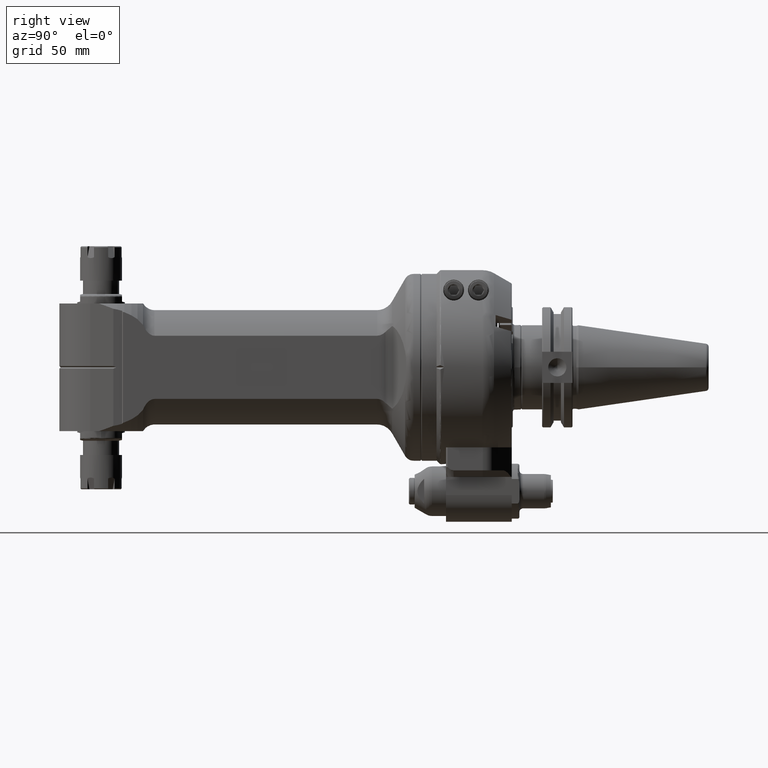
[diagram: clean part render]
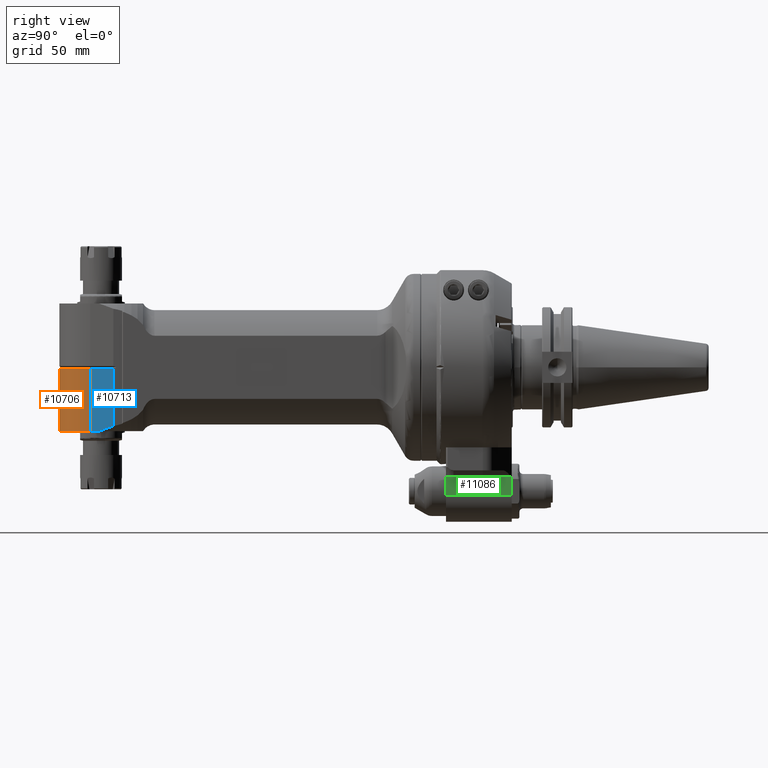
[diagram: same view with three faces highlighted in distinct colors, each labeled with its STEP entity id]
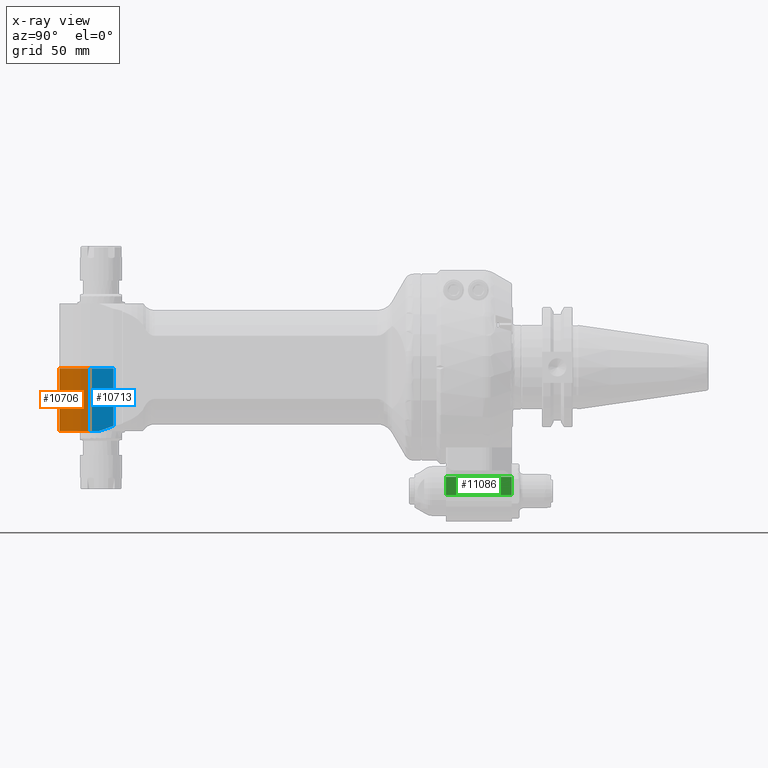
[diagram: x-ray of the same camera — body ghosted, the three highlighted faces saturated]
A machine part, right view with three faces highlighted in distinct colors.
The next image is the same camera in x-ray (body ghosted, the three faces saturated) — at least one of them is partly hidden behind the body in this view.
Their STEP definitions:

[orange] entity #10706 — the highlighted cylindrical surface (partial cylindrical patch) has radius 22 mm, axis along (-0, 0, -1).
#928=FACE_OUTER_BOUND('',#1599,.T.);
#1599=EDGE_LOOP('',(#7497,#7498,#7499,#7500));
#2386=LINE('',#16754,#3134);
#2387=LINE('',#16759,#3135);
#3134=VECTOR('',#13010,32.83431457505);
#3135=VECTOR('',#13015,32.83431457505);
#3892=CIRCLE('',#11503,22.);
#3893=CIRCLE('',#11504,22.);
#4524=VERTEX_POINT('',#16486);
#4578=VERTEX_POINT('',#16752);
#4579=VERTEX_POINT('',#16756);
#4580=VERTEX_POINT('',#16758);
#5708=EDGE_CURVE('',#4524,#4578,#2386,.T.);
#5709=EDGE_CURVE('',#4579,#4578,#3892,.T.);
#5710=EDGE_CURVE('',#4579,#4580,#2387,.T.);
#5711=EDGE_CURVE('',#4524,#4580,#3893,.T.);
#7497=ORIENTED_EDGE('',*,*,#5708,.T.);
#7498=ORIENTED_EDGE('',*,*,#5709,.F.);
#7499=ORIENTED_EDGE('',*,*,#5710,.T.);
#7500=ORIENTED_EDGE('',*,*,#5711,.F.);
#10497=CYLINDRICAL_SURFACE('',#11502,22.);
#10706=ADVANCED_FACE('',(#928),#10497,.T.);
#11502=AXIS2_PLACEMENT_3D('',#16755,#13011,#13012);
#11503=AXIS2_PLACEMENT_3D('',#16757,#13013,#13014);
#11504=AXIS2_PLACEMENT_3D('',#16760,#13016,#13017);
#13010=DIRECTION('',(0.,1.,0.));
#13011=DIRECTION('center_axis',(0.,1.,0.));
#13012=DIRECTION('ref_axis',(1.,0.,-1.22464679914735E-16));
#13013=DIRECTION('center_axis',(0.,1.,0.));
#13014=DIRECTION('ref_axis',(1.,0.,0.));
#13015=DIRECTION('',(0.,-1.,0.));
#13016=DIRECTION('center_axis',(0.,-1.,0.));
#13017=DIRECTION('ref_axis',(1.,0.,0.));
#16486=CARTESIAN_POINT('',(185.6940189923,0.6656854249493,-21.25036817836));
#16752=CARTESIAN_POINT('',(185.6940189923,33.5,-21.25036817836));
#16754=CARTESIAN_POINT('',(185.6940189923,0.6656854249493,-21.25036817836));
#16755=CARTESIAN_POINT('Origin',(180.,-71.53832403312,0.));
#16756=CARTESIAN_POINT('',(185.6940189923,33.5,21.25036817836));
#16757=CARTESIAN_POINT('Origin',(180.,33.5,0.));
#16758=CARTESIAN_POINT('',(185.6940189923,0.6656854249493,21.25036817836));
#16759=CARTESIAN_POINT('',(185.6940189923,33.5,21.25036817836));
#16760=CARTESIAN_POINT('Origin',(180.,0.6656854249493,0.));

[blue] entity #10713 — the highlighted planar face has unit normal (-0.9659, 0.2588, 0).
#432=(
BOUNDED_CURVE()
B_SPLINE_CURVE(2,(#16777,#16778,#16779),.UNSPECIFIED.,.F.,.F.)
B_SPLINE_CURVE_WITH_KNOTS((3,3),(0.608380908920315,0.668690733625114),
 .UNSPECIFIED.)
CURVE()
GEOMETRIC_REPRESENTATION_ITEM()
RATIONAL_B_SPLINE_CURVE((1.05761844635319,1.05761844635323,1.05705222463782))
REPRESENTATION_ITEM('')
);
#582=PLANE('',#11515);
#935=FACE_OUTER_BOUND('',#1606,.T.);
#1606=EDGE_LOOP('',(#7525,#7526,#7527,#7528,#7529,#7530));
#2303=ELLIPSE('',#11516,277.889209732586,61.2357652891682);
#2369=LINE('',#16557,#3117);
#2387=LINE('',#16759,#3135);
#2392=LINE('',#16782,#3140);
#2393=LINE('',#16784,#3141);
#3117=VECTOR('',#12879,10.);
#3135=VECTOR('',#13015,32.83431457505);
#3140=VECTOR('',#13044,11.9999999999998);
#3141=VECTOR('',#13045,10.);
#4537=VERTEX_POINT('',#16552);
#4538=VERTEX_POINT('',#16556);
#4579=VERTEX_POINT('',#16756);
#4580=VERTEX_POINT('',#16758);
#4583=VERTEX_POINT('',#16776);
#4584=VERTEX_POINT('',#16783);
#5644=EDGE_CURVE('',#4538,#4537,#2369,.T.);
#5710=EDGE_CURVE('',#4579,#4580,#2387,.T.);
#5719=EDGE_CURVE('',#4583,#4537,#432,.T.);
#5721=EDGE_CURVE('',#4583,#4580,#2392,.T.);
#5722=EDGE_CURVE('',#4584,#4579,#2393,.T.);
#5723=EDGE_CURVE('',#4584,#4538,#2303,.T.);
#7525=ORIENTED_EDGE('',*,*,#5644,.T.);
#7526=ORIENTED_EDGE('',*,*,#5719,.F.);
#7527=ORIENTED_EDGE('',*,*,#5721,.T.);
#7528=ORIENTED_EDGE('',*,*,#5710,.F.);
#7529=ORIENTED_EDGE('',*,*,#5722,.F.);
#7530=ORIENTED_EDGE('',*,*,#5723,.T.);
#10713=ADVANCED_FACE('',(#935),#582,.F.);
#11515=AXIS2_PLACEMENT_3D('',#16781,#13042,#13043);
#11516=AXIS2_PLACEMENT_3D('',#16785,#13046,#13047);
#12879=DIRECTION('',(0.,-1.,0.));
#13015=DIRECTION('',(0.,-1.,0.));
#13042=DIRECTION('center_axis',(-0.258819045102493,0.,-0.965925826289076));
#13043=DIRECTION('ref_axis',(-0.965925826289076,0.,0.258819045102493));
#13044=DIRECTION('',(0.965925824665113,-1.25489491020702E-8,-0.258819051163203));
#13045=DIRECTION('',(0.965925826289076,0.,-0.258819045102493));
#13046=DIRECTION('center_axis',(0.258819045102493,0.,0.965925826289076));
#13047=DIRECTION('ref_axis',(-0.965925826289076,9.58848046552246E-17,0.258819045102493));
#16552=CARTESIAN_POINT('',(173.566227923503,0.652829558118699,24.5000000005895));
#16556=CARTESIAN_POINT('',(173.566227928,30.71080615823,24.5));
#16557=CARTESIAN_POINT('',(173.566227927985,-16.7500000000001,24.5));
#16756=CARTESIAN_POINT('',(185.6940189923,33.5,21.25036817836));
#16758=CARTESIAN_POINT('',(185.6940189923,0.6656854249493,21.25036817836));
#16759=CARTESIAN_POINT('',(185.6940189923,33.5,21.25036817836));
#16776=CARTESIAN_POINT('',(174.102909084954,0.665685506700943,24.3561967500683));
#16777=CARTESIAN_POINT('Ctrl Pts',(174.102909076804,0.665685424951387,24.3561967195807));
#16778=CARTESIAN_POINT('Ctrl Pts',(173.834712162842,0.665685424952216,24.4280598660895));
#16779=CARTESIAN_POINT('Ctrl Pts',(173.566227923593,0.652829559505805,24.5000000011767));
#16781=CARTESIAN_POINT('Origin',(171.7002025242,-33.5,25.));
#16782=CARTESIAN_POINT('',(174.1029090963,0.6656855755367,24.35619679232));
#16783=CARTESIAN_POINT('',(181.097598665241,33.5000040656455,22.4819815240738));
#16784=CARTESIAN_POINT('',(168.646875066792,33.5,25.8181366264403));
#16785=CARTESIAN_POINT('Origin',(405.789439788772,0.,-37.7240220818525));

[green] entity #11086 — the highlighted planar face has unit normal (-1, 0, 0).
#343=B_SPLINE_CURVE_WITH_KNOTS('',3,(#21147,#21148,#21149,#21150,#21151,
#21152),.UNSPECIFIED.,.F.,.F.,(4,1,1,4),(0.,0.3333333333333,0.6666666666667,
1.),.UNSPECIFIED.);
#450=(
BOUNDED_CURVE()
B_SPLINE_CURVE(2,(#21144,#21145,#21146),.UNSPECIFIED.,.F.,.F.)
B_SPLINE_CURVE_WITH_KNOTS((3,3),(-2.58287776726093,-2.57434975898472),
 .UNSPECIFIED.)
CURVE()
GEOMETRIC_REPRESENTATION_ITEM()
RATIONAL_B_SPLINE_CURVE((1.44254286468392,1.44297118444748,1.44339185140923))
REPRESENTATION_ITEM('')
);
#763=PLANE('',#12281);
#1308=FACE_OUTER_BOUND('',#2030,.T.);
#2030=EDGE_LOOP('',(#9418,#9419,#9420,#9421,#9422,#9423,#9424));
#2615=LINE('',#18197,#3363);
#2660=LINE('',#18578,#3408);
#2663=LINE('',#18584,#3411);
#2814=LINE('',#20990,#3562);
#2830=LINE('',#21142,#3578);
#3363=VECTOR('',#14061,0.374015748031496);
#3408=VECTOR('',#14192,0.0300381073873583);
#3411=VECTOR('',#14195,0.342850056237795);
#3562=VECTOR('',#14962,1.35826771653543);
#3578=VECTOR('',#15014,1.35826771653543);
#4880=VERTEX_POINT('',#18194);
#4881=VERTEX_POINT('',#18196);
#4945=VERTEX_POINT('',#18575);
#4946=VERTEX_POINT('',#18577);
#4948=VERTEX_POINT('',#18581);
#4949=VERTEX_POINT('',#18583);
#5194=VERTEX_POINT('',#21143);
#6189=EDGE_CURVE('',#4881,#4880,#2615,.T.);
#6270=EDGE_CURVE('',#4946,#4945,#2660,.T.);
#6273=EDGE_CURVE('',#4949,#4948,#2663,.T.);
#6642=EDGE_CURVE('',#4945,#4881,#2814,.T.);
#6665=EDGE_CURVE('',#4949,#4880,#2830,.T.);
#6666=EDGE_CURVE('',#5194,#4948,#450,.T.);
#6667=EDGE_CURVE('',#4946,#5194,#343,.T.);
#9418=ORIENTED_EDGE('',*,*,#6642,.T.);
#9419=ORIENTED_EDGE('',*,*,#6189,.T.);
#9420=ORIENTED_EDGE('',*,*,#6665,.F.);
#9421=ORIENTED_EDGE('',*,*,#6273,.T.);
#9422=ORIENTED_EDGE('',*,*,#6666,.F.);
#9423=ORIENTED_EDGE('',*,*,#6667,.F.);
#9424=ORIENTED_EDGE('',*,*,#6270,.T.);
#11086=ADVANCED_FACE('',(#1308),#763,.F.);
#12281=AXIS2_PLACEMENT_3D('',#21141,#15012,#15013);
#14061=DIRECTION('',(0.,0.,-1.));
#14192=DIRECTION('',(-3.073496587321E-9,-8.940363043052E-13,1.));
#14195=DIRECTION('',(0.,0.,1.));
#14962=DIRECTION('',(0.,-1.,0.));
#15012=DIRECTION('center_axis',(-1.,0.,0.));
#15013=DIRECTION('ref_axis',(0.,-1.,0.));
#15014=DIRECTION('',(0.,-1.,0.));
#18194=CARTESIAN_POINT('',(0.590551181102362,0.196850393700787,-2.63779527559055));
#18196=CARTESIAN_POINT('',(0.590551181102362,0.196850393700787,-2.26377952755906));
#18197=CARTESIAN_POINT('',(0.590551181102362,0.196850393700787,-2.26377952755906));
#18575=CARTESIAN_POINT('',(0.590551181102362,1.55511811023622,-2.26377952755906));
#18577=CARTESIAN_POINT('',(0.590551181222601,1.55511811024408,-2.29381763497542));
#18578=CARTESIAN_POINT('',(0.590551181194488,1.55511811023622,-2.29381763494646));
#18581=CARTESIAN_POINT('',(0.590551181102362,1.55511811023622,-2.29494521935276));
#18583=CARTESIAN_POINT('',(0.590551181102362,1.55511811023622,-2.63779527559055));
#18584=CARTESIAN_POINT('',(0.590551181102362,1.55511811023622,-2.63779527559055));
#20990=CARTESIAN_POINT('',(0.590551181102362,1.55511811023622,-2.26377952755906));
#21141=CARTESIAN_POINT('Origin',(0.590551181102362,2.05905511811024,-1.48818888188976));
#21142=CARTESIAN_POINT('',(0.590551181102362,1.55511811023622,-2.63779527559055));
#21143=CARTESIAN_POINT('',(0.590551181004967,1.552724727978,-2.29485159389878));
#21144=CARTESIAN_POINT('Ctrl Pts',(0.590551181102362,1.55272472798404,-2.29485159391092));
#21145=CARTESIAN_POINT('Ctrl Pts',(0.590551181102362,1.55392211207035,-2.29489884237391));
#21146=CARTESIAN_POINT('Ctrl Pts',(0.590551181102362,1.55511811023633,-2.29494521935276));
#21147=CARTESIAN_POINT('Ctrl Pts',(0.590551181194488,1.55511811023622,-2.29381763494646));
#21148=CARTESIAN_POINT('Ctrl Pts',(0.590551181194488,1.55485262470827,-2.29393132485039));
#21149=CARTESIAN_POINT('Ctrl Pts',(0.59055118104685,1.55432135627598,-2.29415950008386));
#21150=CARTESIAN_POINT('Ctrl Pts',(0.590551181157874,1.55352356670748,-2.29450414821102));
#21151=CARTESIAN_POINT('Ctrl Pts',(0.590551181009842,1.55299110667874,-2.29473551246732));
#21152=CARTESIAN_POINT('Ctrl Pts',(0.590551181009842,1.55272472799291,-2.29485159390591));